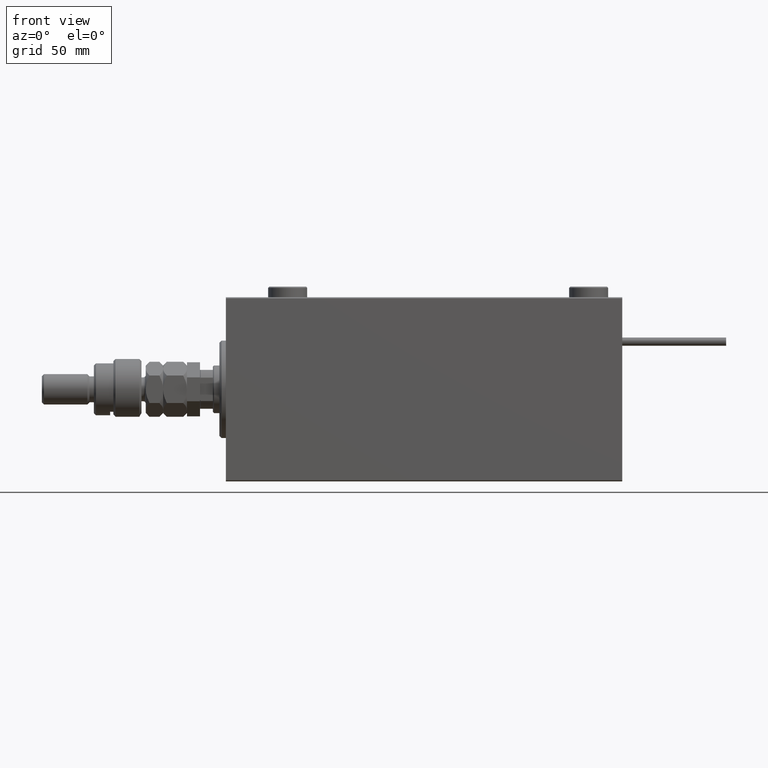
[diagram: clean part render]
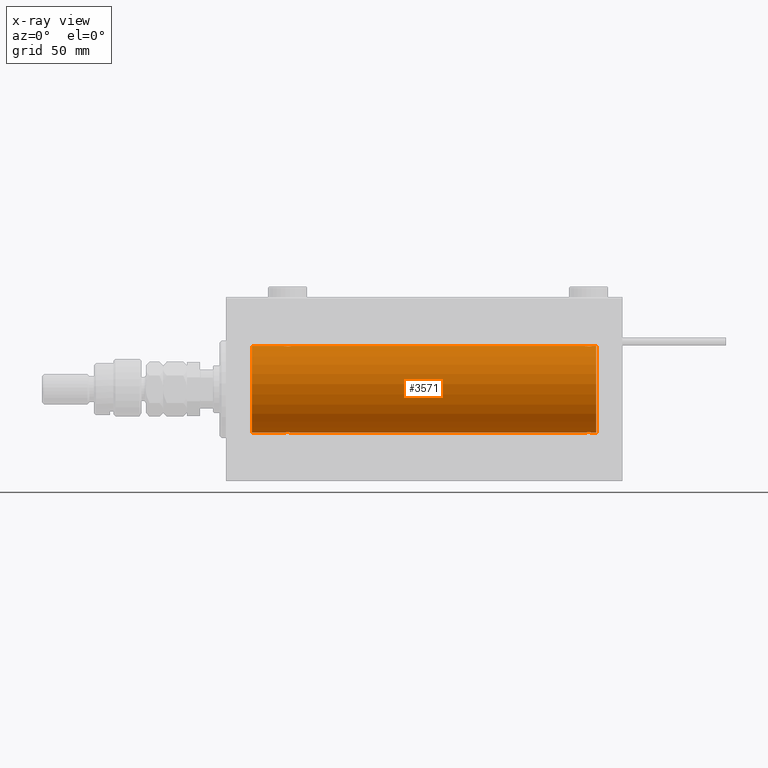
[diagram: x-ray — body ghosted, one internal face saturated and labeled with its STEP entity id]
A machine part, front view, then the same camera in x-ray: the body is ghosted and one INTERNAL B-rep face — a face not visible from any outside direction — is saturated and labeled: STEP entity #3571.
In plain terms, the highlighted cylindrical surface (partial cylindrical patch) has radius 20 mm, axis along (-1, -0, -0).
Its self-contained STEP definition (entity closure, byte-faithful):
#184 = CARTESIAN_POINT ( 'NONE',  ( 166.1769333108053104, -1.505486175075775979, 19.94347168299867690 ) ) ;
#665 = CARTESIAN_POINT ( 'NONE',  ( 27.98076487864723205, -1.935816449315125531, 19.90611141657401717 ) ) ;
#1003 = CARTESIAN_POINT ( 'NONE',  ( 168.7180541947215033, -1.591668229360197806, 19.93669678979812687 ) ) ;
#1275 = CARTESIAN_POINT ( 'NONE',  ( 27.85651471266959334, -1.898187925611338533, -19.90978194174746818 ) ) ;
#1284 = CARTESIAN_POINT ( 'NONE',  ( 169.4467948419179493, -0.5270924491156545599, 19.99450181871975829 ) ) ;
#1832 = EDGE_CURVE ( 'NONE', #27519, #8889, #9416, .T. ) ;
#1843 = CARTESIAN_POINT ( 'NONE',  ( 29.50306556339602437, -1.735203193119894349, -19.92471783160910803 ) ) ;
#1950 = CARTESIAN_POINT ( 'NONE',  ( 171.0000000000000000, 0.000000000000000000, 20.00000000000000000 ) ) ;
#2118 = CARTESIAN_POINT ( 'NONE',  ( 29.38829437207091999, -1.796691196322316664, -19.91919800395357143 ) ) ;
#2368 = CARTESIAN_POINT ( 'NONE',  ( 171.0000000000000000, 0.000000000000000000, 0.000000000000000000 ) ) ;
#2618 = CARTESIAN_POINT ( 'NONE',  ( 168.5030655633959782, -1.735203193119897014, -19.92471783160911158 ) ) ;
#2894 = CARTESIAN_POINT ( 'NONE',  ( 169.4999999999999716, 2.449293582762473501E-15, -20.00000000000000000 ) ) ;
#3163 = CARTESIAN_POINT ( 'NONE',  ( 166.1790309315270804, -1.507328959728508666, -19.94333197382385947 ) ) ;
#3571 = ADVANCED_FACE ( 'NONE', ( #31193 ), #18616, .F. ) ;
#3674 = CARTESIAN_POINT ( 'NONE',  ( 171.0000000000000000, 2.449293598294706513E-15, -20.00000000000000000 ) ) ;
#3843 = CARTESIAN_POINT ( 'NONE',  ( 165.9005847511596698, -1.228758402364239499, 19.96307487248084556 ) ) ;
#3944 = DIRECTION ( 'NONE',  ( -1.000000000000000000, -0.000000000000000000, -0.000000000000000000 ) ) ;
#4382 = CARTESIAN_POINT ( 'NONE',  ( 166.9807648786472782, -1.935816449315131527, 19.90611141657401717 ) ) ;
#4836 = EDGE_LOOP ( 'NONE', ( #17535, #28042, #54688, #12150, #48808, #19316, #30019, #47997, #54425, #48048, #19089, #23620 ) ) ;
#4854 = CARTESIAN_POINT ( 'NONE',  ( 30.44679484191798124, -0.5270924491156734337, 19.99450181871975829 ) ) ;
#5369 = VERTEX_POINT ( 'NONE', #1950 ) ;
#5471 = CARTESIAN_POINT ( 'NONE',  ( 29.72028945794465571, -1.589957321664208223, -19.93683391378736047 ) ) ;
#5480 = CARTESIAN_POINT ( 'NONE',  ( 168.8209690684728628, -1.507328959728491347, 19.94333197382385592 ) ) ;
#5754 = CARTESIAN_POINT ( 'NONE',  ( 30.44755062882508412, -0.5243189001514996228, -19.99457699142849876 ) ) ;
#5843 = B_SPLINE_CURVE_WITH_KNOTS ( 'NONE', 3,
 ( #14989, #9671, #5754, #52529, #26734, #43840, #5471, #1843, #2118, #35703, #14708, #27297, #22260, #44669, #35983, #36256, #1275, #18361, #47758, #18640, #53363, #44394, #40194, #39346, #35422, #6039 ),
 .UNSPECIFIED., .F., .F.,
 ( 4, 2, 2, 2, 2, 2, 2, 2, 2, 2, 2, 2, 4 ),
 ( 0.006256819553329842284, 0.007038738568778818427, 0.007820657584227792836, 0.008211617091952278305, 0.008602576599676762040, 0.008993536107401245774, 0.009384495615125729509, 0.009775455122850213244, 0.01016641463057469871, 0.01055737413829918071, 0.01094833364602366618, 0.01173025266147263365, 0.01251217167692159939 ),
 .UNSPECIFIED. ) ;
#5857 = VERTEX_POINT ( 'NONE', #36853 ) ;
#6039 = CARTESIAN_POINT ( 'NONE',  ( 26.50000000000000355, -3.809869420541414000E-15, -20.00000000000000000 ) ) ;
#6450 = EDGE_CURVE ( 'NONE', #5369, #5857, #27489, .T. ) ;
#7366 = CARTESIAN_POINT ( 'NONE',  ( 165.9022530844526671, -1.230936344679295136, -19.96293863536308422 ) ) ;
#7430 = CARTESIAN_POINT ( 'NONE',  ( 26.55244937117492299, -0.5243189001515012881, 19.99457699142850586 ) ) ;
#7771 = CARTESIAN_POINT ( 'NONE',  ( 167.7607725603156439, -1.987205673487804747, 19.90104673894209952 ) ) ;
#7883 = CARTESIAN_POINT ( 'NONE',  ( 12.00000000000001066, 2.449293598294706513E-15, -20.00000000000000000 ) ) ;
#7914 = CARTESIAN_POINT ( 'NONE',  ( 166.8565147126695649, -1.898187925611359850, -19.90978194174746463 ) ) ;
#8586 = CARTESIAN_POINT ( 'NONE',  ( 166.6117056279290694, -1.796691196322314443, 19.91919800395357143 ) ) ;
#8889 = VERTEX_POINT ( 'NONE', #55410 ) ;
#9056 = CARTESIAN_POINT ( 'NONE',  ( 28.76077256031568297, -1.987205673487810298, 19.90104673894211018 ) ) ;
#9416 = LINE ( 'NONE', #39654, #32985 ) ;
#9614 = CARTESIAN_POINT ( 'NONE',  ( 29.82096906847289830, -1.507328959728492901, 19.94333197382385592 ) ) ;
#9671 = CARTESIAN_POINT ( 'NONE',  ( 30.49999999999999645, -0.2610801504281900498, -19.99999999999999645 ) ) ;
#10073 = VERTEX_POINT ( 'NONE', #29240 ) ;
#10241 = CARTESIAN_POINT ( 'NONE',  ( 169.4999999999999716, 6.344962748519499734E-15, 20.00000000000000000 ) ) ;
#10497 = CARTESIAN_POINT ( 'NONE',  ( 171.0000000000000000, 0.000000000000000000, 0.000000000000000000 ) ) ;
#10578 = EDGE_CURVE ( 'NONE', #16980, #26946, #22500, .T. ) ;
#11005 = CARTESIAN_POINT ( 'NONE',  ( 166.6142092332927405, -1.797933656607938691, -19.91908554465557657 ) ) ;
#11078 = EDGE_CURVE ( 'NONE', #24338, #27519, #50945, .T. ) ;
#11137 = EDGE_CURVE ( 'NONE', #32786, #26946, #33372, .T. ) ;
#11279 = CARTESIAN_POINT ( 'NONE',  ( 168.3882943720709022, -1.796691196322330653, -19.91919800395357143 ) ) ;
#11553 = CARTESIAN_POINT ( 'NONE',  ( 166.2819458052784398, -1.591668229360214903, -19.93669678979811977 ) ) ;
#11828 = CARTESIAN_POINT ( 'NONE',  ( 169.4475506288250415, -0.5243189001515055070, -19.99457699142850231 ) ) ;
#11953 = CARTESIAN_POINT ( 'NONE',  ( 166.2797105420553123, -1.589957321664211998, 19.93683391378736403 ) ) ;
#12100 = DIRECTION ( 'NONE',  ( -1.000000000000000000, -0.000000000000000000, -0.000000000000000000 ) ) ;
#12150 = ORIENTED_EDGE ( 'NONE', *, *, #1832, .T. ) ;
#12215 = CIRCLE ( 'NONE', #22917, 20.00000000000000000 ) ;
#12777 = CARTESIAN_POINT ( 'NONE',  ( 166.4969344366039934, -1.735203193119897236, 19.92471783160911514 ) ) ;
#13247 = CARTESIAN_POINT ( 'NONE',  ( 28.63058871710834552, -2.000100592782554809, 19.89973863218036598 ) ) ;
#14154 = CARTESIAN_POINT ( 'NONE',  ( 169.0977469155472761, -1.230936344679278704, 19.96293863536309132 ) ) ;
#14708 = CARTESIAN_POINT ( 'NONE',  ( 29.01923512135276795, -1.935816449315124643, -19.90611141657401717 ) ) ;
#14989 = CARTESIAN_POINT ( 'NONE',  ( 30.50000000000000000, 2.449293582768389958E-15, -20.00000000000000000 ) ) ;
#15493 = CARTESIAN_POINT ( 'NONE',  ( 168.0192351213528070, -1.935816449315140408, -19.90611141657402072 ) ) ;
#16036 = CARTESIAN_POINT ( 'NONE',  ( 165.5000000000000284, -0.2644051013331212840, -20.00000000000000000 ) ) ;
#16714 = CARTESIAN_POINT ( 'NONE',  ( 165.4999999999999716, -1.553188236289650144E-23, 20.00000000000000000 ) ) ;
#16963 = VECTOR ( 'NONE', #3944, 1000.000000000000000 ) ;
#16980 = VERTEX_POINT ( 'NONE', #7883 ) ;
#17190 = CARTESIAN_POINT ( 'NONE',  ( 29.71805419472151044, -1.591668229360198028, 19.93669678979812332 ) ) ;
#17259 = CARTESIAN_POINT ( 'NONE',  ( 166.8536932607535448, -1.897222639860593363, 19.90987429971496780 ) ) ;
#17535 = ORIENTED_EDGE ( 'NONE', *, *, #17999, .F. ) ;
#17999 = EDGE_CURVE ( 'NONE', #43311, #5369, #12215, .T. ) ;
#18020 = CARTESIAN_POINT ( 'NONE',  ( 29.38579076670729151, -1.797933656607919817, 19.91908554465558367 ) ) ;
#18361 = CARTESIAN_POINT ( 'NONE',  ( 27.61420923329272981, -1.797933656607917596, -19.91908554465558367 ) ) ;
#18616 = CYLINDRICAL_SURFACE ( 'NONE', #48308, 20.00000000000000000 ) ;
#18640 = CARTESIAN_POINT ( 'NONE',  ( 27.28194580527848601, -1.591668229360197140, -19.93669678979812332 ) ) ;
#19089 = ORIENTED_EDGE ( 'NONE', *, *, #23281, .T. ) ;
#19316 = ORIENTED_EDGE ( 'NONE', *, *, #30443, .T. ) ;
#19696 = CARTESIAN_POINT ( 'NONE',  ( 168.1463067392464268, -1.897222639860608906, -19.90987429971496070 ) ) ;
#19811 = CARTESIAN_POINT ( 'NONE',  ( 30.50000000000000000, -6.994834070630008937E-15, 20.00000000000000000 ) ) ;
#20248 = CARTESIAN_POINT ( 'NONE',  ( 165.5532051580820223, -0.5270924491156762093, -19.99450181871976184 ) ) ;
#20517 = CARTESIAN_POINT ( 'NONE',  ( 166.9835146708108766, -1.936551476643014080, -19.90603968831098669 ) ) ;
#21453 = CARTESIAN_POINT ( 'NONE',  ( 167.2364185590859051, -1.986835489085816198, 19.90108393514801222 ) ) ;
#21477 = CARTESIAN_POINT ( 'NONE',  ( 171.0000000000000000, 0.000000000000000000, 20.00000000000000000 ) ) ;
#21658 = CARTESIAN_POINT ( 'NONE',  ( 27.85369326075355545, -1.897222639860595583, 19.90987429971497491 ) ) ;
#21881 = CARTESIAN_POINT ( 'NONE',  ( 12.00000000000001066, 0.000000000000000000, 20.00000000000000000 ) ) ;
#21926 = CARTESIAN_POINT ( 'NONE',  ( 28.23641855908585185, -1.986835489085814643, 19.90108393514801222 ) ) ;
#22089 = DIRECTION ( 'NONE',  ( -1.000000000000000000, -0.000000000000000000, -0.000000000000000000 ) ) ;
#22260 = CARTESIAN_POINT ( 'NONE',  ( 28.63365196142448355, -1.999898234284062992, -19.89975896996866211 ) ) ;
#22500 = CIRCLE ( 'NONE', #52909, 20.00000000000000000 ) ;
#22917 = AXIS2_PLACEMENT_3D ( 'NONE', #10497, #49703, #41011 ) ;
#23281 = EDGE_CURVE ( 'NONE', #10073, #5857, #39875, .T. ) ;
#23620 = ORIENTED_EDGE ( 'NONE', *, *, #6450, .F. ) ;
#23732 = DIRECTION ( 'NONE',  ( 0.000000000000000000, 0.000000000000000000, 1.000000000000000000 ) ) ;
#24338 = VERTEX_POINT ( 'NONE', #52481 ) ;
#24654 = LINE ( 'NONE', #3674, #16963 ) ;
#24830 = CARTESIAN_POINT ( 'NONE',  ( 168.1434852873303782, -1.898187925611334093, 19.90978194174746463 ) ) ;
#25647 = CARTESIAN_POINT ( 'NONE',  ( 165.4999999999999716, -0.2610801504281912711, 19.99999999999999645 ) ) ;
#25854 = CARTESIAN_POINT ( 'NONE',  ( 28.36634803857552001, -1.999898234284063436, 19.89975896996866211 ) ) ;
#26123 = CARTESIAN_POINT ( 'NONE',  ( 30.24686976303071617, -1.008108445278690146, 19.97602680192586533 ) ) ;
#26734 = CARTESIAN_POINT ( 'NONE',  ( 30.09941524884030173, -1.228758402364235502, -19.96307487248084911 ) ) ;
#26946 = VERTEX_POINT ( 'NONE', #21881 ) ;
#26960 = CARTESIAN_POINT ( 'NONE',  ( 27.61170562792908711, -1.796691196322317996, 19.91919800395357143 ) ) ;
#27297 = CARTESIAN_POINT ( 'NONE',  ( 28.76358144091416236, -1.986835489085814199, -19.90108393514801222 ) ) ;
#27489 = LINE ( 'NONE', #35611, #47378 ) ;
#27519 = VERTEX_POINT ( 'NONE', #34082 ) ;
#27931 = DIRECTION ( 'NONE',  ( -1.000000000000000000, 0.000000000000000000, 0.000000000000000000 ) ) ;
#28042 = ORIENTED_EDGE ( 'NONE', *, *, #38129, .T. ) ;
#28091 = VERTEX_POINT ( 'NONE', #34973 ) ;
#28358 = CARTESIAN_POINT ( 'NONE',  ( 165.4999999999999716, -1.510525576716094838E-14, -20.00000000000000000 ) ) ;
#29032 = CARTESIAN_POINT ( 'NONE',  ( 167.3663480385754667, -1.999898234284060772, 19.89975896996866211 ) ) ;
#29240 = CARTESIAN_POINT ( 'NONE',  ( 165.4999999999999716, -1.553188236289650144E-23, 20.00000000000000000 ) ) ;
#29947 = LINE ( 'NONE', #43388, #47021 ) ;
#30019 = ORIENTED_EDGE ( 'NONE', *, *, #10578, .T. ) ;
#30328 = CARTESIAN_POINT ( 'NONE',  ( 30.09774691554729742, -1.230936344679279371, 19.96293863536309487 ) ) ;
#30443 = EDGE_CURVE ( 'NONE', #28091, #16980, #29947, .T. ) ;
#31162 = CARTESIAN_POINT ( 'NONE',  ( 29.50067219139244301, -1.736582545981377290, 19.92459705242981371 ) ) ;
#31193 = FACE_OUTER_BOUND ( 'NONE', #4836, .T. ) ;
#31232 = CARTESIAN_POINT ( 'NONE',  ( 169.5000000000000000, -0.2644051013331001898, 20.00000000000000355 ) ) ;
#31759 = DIRECTION ( 'NONE',  ( -1.000000000000000000, -0.000000000000000000, -0.000000000000000000 ) ) ;
#32786 = VERTEX_POINT ( 'NONE', #50189 ) ;
#32835 = CARTESIAN_POINT ( 'NONE',  ( 169.0994152488403302, -1.228758402364252822, -19.96307487248083845 ) ) ;
#32985 = VECTOR ( 'NONE', #52270, 1000.000000000000000 ) ;
#33100 = CARTESIAN_POINT ( 'NONE',  ( 169.4999999999999432, -0.2610801504281899388, -19.99999999999999645 ) ) ;
#33372 = LINE ( 'NONE', #50493, #35941 ) ;
#34082 = CARTESIAN_POINT ( 'NONE',  ( 165.4999999999999716, -1.510525576716094838E-14, -20.00000000000000000 ) ) ;
#34973 = CARTESIAN_POINT ( 'NONE',  ( 26.50000000000000355, -3.809869420541414000E-15, -20.00000000000000000 ) ) ;
#35143 = CARTESIAN_POINT ( 'NONE',  ( 168.5006721913923684, -1.736582545981374404, 19.92459705242980306 ) ) ;
#35358 = CARTESIAN_POINT ( 'NONE',  ( 26.90058475115969472, -1.228758402364234392, 19.96307487248084556 ) ) ;
#35422 = CARTESIAN_POINT ( 'NONE',  ( 26.50000000000001066, -0.2644051013331030209, -20.00000000000000355 ) ) ;
#35611 = CARTESIAN_POINT ( 'NONE',  ( 171.0000000000000000, 0.000000000000000000, 20.00000000000000000 ) ) ;
#35703 = CARTESIAN_POINT ( 'NONE',  ( 29.14630673924643744, -1.897222639860594029, -19.90987429971496780 ) ) ;
#35890 = DIRECTION ( 'NONE',  ( -1.000000000000000000, -0.000000000000000000, -0.000000000000000000 ) ) ;
#35941 = VECTOR ( 'NONE', #12100, 1000.000000000000000 ) ;
#35983 = CARTESIAN_POINT ( 'NONE',  ( 28.23922743968432059, -1.987205673487808966, -19.90104673894211018 ) ) ;
#36256 = CARTESIAN_POINT ( 'NONE',  ( 27.98351467081095123, -1.936551476643005198, -19.90603968831098314 ) ) ;
#36480 = CARTESIAN_POINT ( 'NONE',  ( 169.2482591346001470, -1.005710574260847645, -19.97614991974274190 ) ) ;
#36758 = CARTESIAN_POINT ( 'NONE',  ( 167.6336519614244764, -1.999898234284076981, -19.89975896996866211 ) ) ;
#36853 = CARTESIAN_POINT ( 'NONE',  ( 169.4999999999999716, 6.344962748519499734E-15, 20.00000000000000000 ) ) ;
#37031 = CARTESIAN_POINT ( 'NONE',  ( 168.7202894579446593, -1.589957321664208001, -19.93683391378736403 ) ) ;
#37709 = CARTESIAN_POINT ( 'NONE',  ( 165.7517408653997677, -1.005710574260841650, 19.97614991974273835 ) ) ;
#38129 = EDGE_CURVE ( 'NONE', #43311, #24338, #24654, .T. ) ;
#38560 = DIRECTION ( 'NONE',  ( -1.000000000000000000, -0.000000000000000000, -0.000000000000000000 ) ) ;
#38739 = CARTESIAN_POINT ( 'NONE',  ( 30.49999999999997868, -0.2644051013330948052, 19.99999999999999645 ) ) ;
#38805 = CARTESIAN_POINT ( 'NONE',  ( 169.2468697630307020, -1.008108445278671050, 19.97602680192585822 ) ) ;
#39018 = CARTESIAN_POINT ( 'NONE',  ( 30.50000000000000000, -6.994834070630008937E-15, 20.00000000000000000 ) ) ;
#39346 = CARTESIAN_POINT ( 'NONE',  ( 26.55320515808203297, -0.5270924491156698810, -19.99450181871976184 ) ) ;
#39353 = CARTESIAN_POINT ( 'NONE',  ( 168.3857907667072595, -1.797933656607912489, 19.91908554465557657 ) ) ;
#39654 = CARTESIAN_POINT ( 'NONE',  ( 171.0000000000000000, 2.449293598294706513E-15, -20.00000000000000000 ) ) ;
#39875 = B_SPLINE_CURVE_WITH_KNOTS ( 'NONE', 3,
 ( #16714, #25647, #46946, #37709, #3843, #184, #11953, #12777, #8586, #17259, #4382, #21453, #29032, #46128, #7771, #41927, #24830, #39353, #35143, #1003, #5480, #14154, #38805, #1284, #31232, #10241 ),
 .UNSPECIFIED., .F., .F.,
 ( 4, 2, 2, 2, 2, 2, 2, 2, 2, 2, 2, 2, 4 ),
 ( 0.006256819553329837080, 0.007038738568778794141, 0.007820657584227751202, 0.008211617091952229733, 0.008602576599676708263, 0.008993536107401185059, 0.009384495615125663590, 0.009775455122850142120, 0.01016641463057462239, 0.01055737413829909918, 0.01094833364602357945, 0.01173025266147259202, 0.01251217167692160633 ),
 .UNSPECIFIED. ) ;
#40033 = VERTEX_POINT ( 'NONE', #19811 ) ;
#40194 = CARTESIAN_POINT ( 'NONE',  ( 26.75313023696928738, -1.008108445278687704, -19.97602680192586533 ) ) ;
#41011 = DIRECTION ( 'NONE',  ( 0.000000000000000000, 0.000000000000000000, 1.000000000000000000 ) ) ;
#41248 = CARTESIAN_POINT ( 'NONE',  ( 168.8230666891946896, -1.505486175075791966, -19.94347168299867690 ) ) ;
#41464 = B_SPLINE_CURVE_WITH_KNOTS ( 'NONE', 3,
 ( #50004, #45792, #7430, #42955, #35358, #51644, #52189, #43780, #26960, #21658, #665, #21926, #25854, #13247, #9056, #43228, #48261, #18020, #31162, #17190, #9614, #30328, #26123, #4854, #38739, #39018 ),
 .UNSPECIFIED., .F., .F.,
 ( 4, 2, 2, 2, 2, 2, 2, 2, 2, 2, 2, 2, 4 ),
 ( 0.006256819553329787641, 0.007038738568778755977, 0.007820657584227725181, 0.008211617091952205447, 0.008602576599676685712, 0.008993536107401164242, 0.009384495615125644508, 0.009775455122850124773, 0.01016641463057460504, 0.01055737413829908530, 0.01094833364602356557, 0.01173025266147252610, 0.01251217167692148663 ),
 .UNSPECIFIED. ) ;
#41519 = CARTESIAN_POINT ( 'NONE',  ( 167.2392274396842424, -1.987205673487821178, -19.90104673894210308 ) ) ;
#41790 = EDGE_CURVE ( 'NONE', #32786, #40033, #41464, .T. ) ;
#41927 = CARTESIAN_POINT ( 'NONE',  ( 168.0164853291890381, -1.936551476642997649, 19.90603968831098669 ) ) ;
#42497 = LINE ( 'NONE', #21477, #45770 ) ;
#42955 = CARTESIAN_POINT ( 'NONE',  ( 26.75174086539981033, -1.005710574260840318, 19.97614991974274190 ) ) ;
#43228 = CARTESIAN_POINT ( 'NONE',  ( 29.01648532918904522, -1.936551476643006087, 19.90603968831098314 ) ) ;
#43311 = VERTEX_POINT ( 'NONE', #48667 ) ;
#43388 = CARTESIAN_POINT ( 'NONE',  ( 171.0000000000000000, 2.449293598294706513E-15, -20.00000000000000000 ) ) ;
#43628 = EDGE_CURVE ( 'NONE', #8889, #28091, #5843, .T. ) ;
#43780 = CARTESIAN_POINT ( 'NONE',  ( 27.49693443660397563, -1.735203193119895460, 19.92471783160911869 ) ) ;
#43840 = CARTESIAN_POINT ( 'NONE',  ( 29.82306668919470383, -1.505486175075772870, -19.94347168299867334 ) ) ;
#44394 = CARTESIAN_POINT ( 'NONE',  ( 26.90225308445269903, -1.230936344679278260, -19.96293863536309132 ) ) ;
#44669 = CARTESIAN_POINT ( 'NONE',  ( 28.36941128289166159, -2.000100592782553921, -19.89973863218036598 ) ) ;
#45770 = VECTOR ( 'NONE', #38560, 1000.000000000000000 ) ;
#45792 = CARTESIAN_POINT ( 'NONE',  ( 26.50000000000000711, -0.2610801504281919927, 20.00000000000000000 ) ) ;
#46000 = CARTESIAN_POINT ( 'NONE',  ( 167.3694112828916616, -2.000100592782568576, -19.89973863218036243 ) ) ;
#46128 = CARTESIAN_POINT ( 'NONE',  ( 167.6305887171083668, -2.000100592782551701, 19.89973863218036598 ) ) ;
#46531 = EDGE_CURVE ( 'NONE', #10073, #40033, #42497, .T. ) ;
#46946 = CARTESIAN_POINT ( 'NONE',  ( 165.5524493711749301, -0.5243189001515013992, 19.99457699142850231 ) ) ;
#47021 = VECTOR ( 'NONE', #22089, 1000.000000000000000 ) ;
#47378 = VECTOR ( 'NONE', #35890, 1000.000000000000000 ) ;
#47758 = CARTESIAN_POINT ( 'NONE',  ( 27.49932780860757475, -1.736582545981376180, -19.92459705242981371 ) ) ;
#47997 = ORIENTED_EDGE ( 'NONE', *, *, #11137, .F. ) ;
#48048 = ORIENTED_EDGE ( 'NONE', *, *, #46531, .F. ) ;
#48261 = CARTESIAN_POINT ( 'NONE',  ( 29.14348528733041377, -1.898187925611340310, 19.90978194174746818 ) ) ;
#48308 = AXIS2_PLACEMENT_3D ( 'NONE', #2368, #31759, #53337 ) ;
#48667 = CARTESIAN_POINT ( 'NONE',  ( 171.0000000000000000, 2.449293598294706513E-15, -20.00000000000000000 ) ) ;
#48808 = ORIENTED_EDGE ( 'NONE', *, *, #43628, .T. ) ;
#49523 = CARTESIAN_POINT ( 'NONE',  ( 12.00000000000001066, 0.000000000000000000, 0.000000000000000000 ) ) ;
#49665 = CARTESIAN_POINT ( 'NONE',  ( 165.7531302369692980, -1.008108445278692589, -19.97602680192585822 ) ) ;
#49703 = DIRECTION ( 'NONE',  ( -1.000000000000000000, 0.000000000000000000, 0.000000000000000000 ) ) ;
#50004 = CARTESIAN_POINT ( 'NONE',  ( 26.50000000000000355, -1.552636033655995435E-23, 20.00000000000000000 ) ) ;
#50189 = CARTESIAN_POINT ( 'NONE',  ( 26.50000000000000355, -1.552636033655995435E-23, 20.00000000000000000 ) ) ;
#50493 = CARTESIAN_POINT ( 'NONE',  ( 171.0000000000000000, 0.000000000000000000, 20.00000000000000000 ) ) ;
#50945 = B_SPLINE_CURVE_WITH_KNOTS ( 'NONE', 3,
 ( #2894, #33100, #11828, #36480, #32835, #41248, #37031, #2618, #11279, #19696, #15493, #54676, #36758, #46000, #41519, #20517, #7914, #11005, #53857, #11553, #3163, #7366, #49665, #20248, #16036, #28358 ),
 .UNSPECIFIED., .F., .F.,
 ( 4, 2, 2, 2, 2, 2, 2, 2, 2, 2, 2, 2, 4 ),
 ( 0.006256819553329819733, 0.007038738568778733426, 0.007820657584227647119, 0.008211617091952132588, 0.008602576599676618058, 0.008993536107401105262, 0.009384495615125590731, 0.009775455122850077935, 0.01016641463057456340, 0.01055737413829905061, 0.01094833364602353781, 0.01173025266147256773, 0.01251217167692160112 ),
 .UNSPECIFIED. ) ;
#51644 = CARTESIAN_POINT ( 'NONE',  ( 27.17693331080530683, -1.505486175075772426, 19.94347168299868045 ) ) ;
#52189 = CARTESIAN_POINT ( 'NONE',  ( 27.27971054205536205, -1.589957321664209111, 19.93683391378736403 ) ) ;
#52270 = DIRECTION ( 'NONE',  ( -1.000000000000000000, -0.000000000000000000, -0.000000000000000000 ) ) ;
#52481 = CARTESIAN_POINT ( 'NONE',  ( 169.4999999999999716, 2.449293582762473501E-15, -20.00000000000000000 ) ) ;
#52529 = CARTESIAN_POINT ( 'NONE',  ( 30.24825913460018612, -1.005710574260838985, -19.97614991974274190 ) ) ;
#52909 = AXIS2_PLACEMENT_3D ( 'NONE', #49523, #27931, #23732 ) ;
#53337 = DIRECTION ( 'NONE',  ( 0.000000000000000000, 0.000000000000000000, 1.000000000000000000 ) ) ;
#53363 = CARTESIAN_POINT ( 'NONE',  ( 27.17903093152710525, -1.507328959728492457, -19.94333197382385592 ) ) ;
#53857 = CARTESIAN_POINT ( 'NONE',  ( 166.4993278086076032, -1.736582545981393277, -19.92459705242980661 ) ) ;
#54425 = ORIENTED_EDGE ( 'NONE', *, *, #41790, .T. ) ;
#54676 = CARTESIAN_POINT ( 'NONE',  ( 167.7635814409141233, -1.986835489085827966, -19.90108393514800511 ) ) ;
#54688 = ORIENTED_EDGE ( 'NONE', *, *, #11078, .T. ) ;
#55410 = CARTESIAN_POINT ( 'NONE',  ( 30.50000000000000000, 2.449293582768389958E-15, -20.00000000000000000 ) ) ;